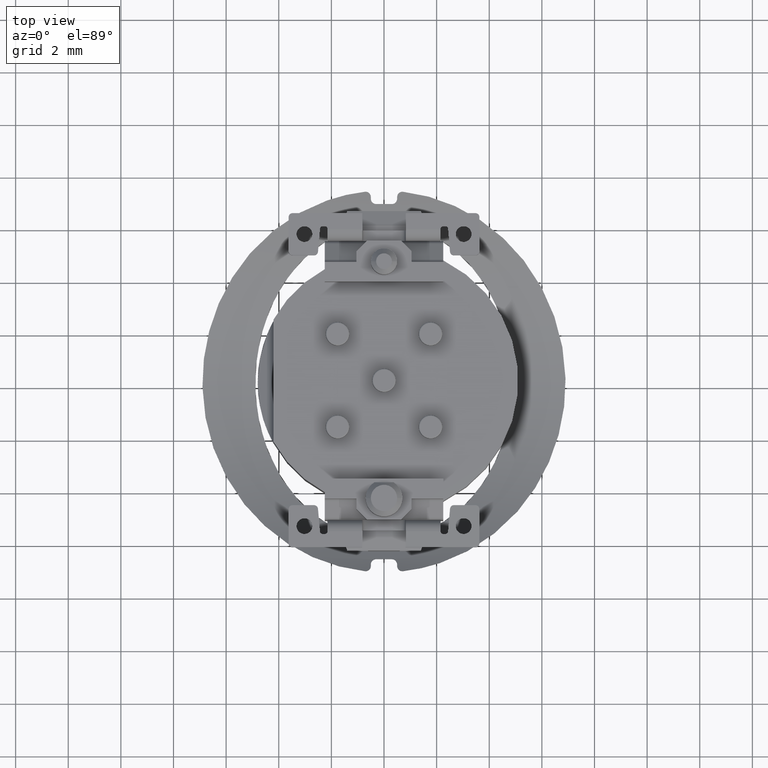
[diagram: clean part render]
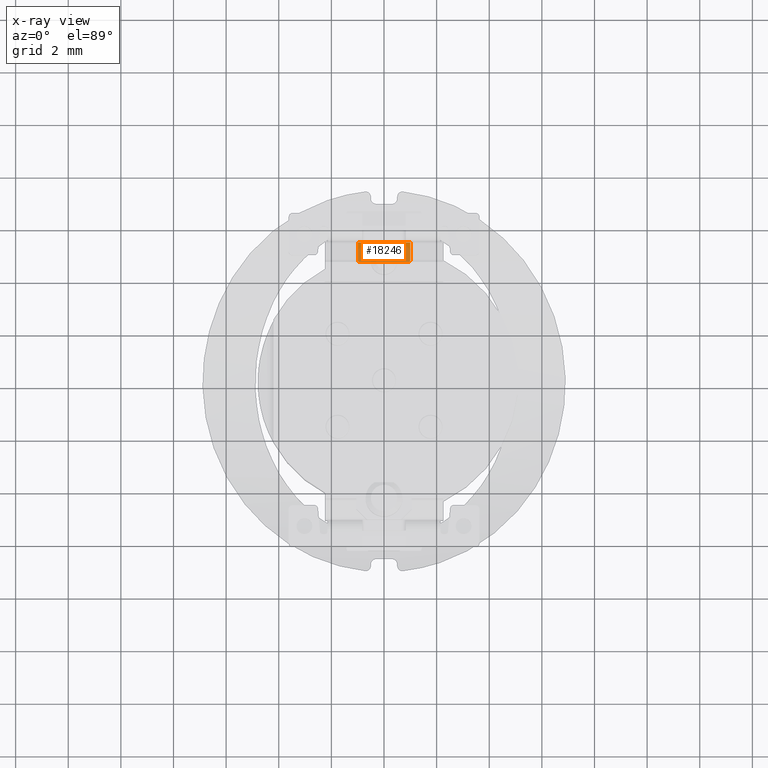
[diagram: x-ray — body ghosted, one internal face saturated and labeled with its STEP entity id]
A machine part, top view, then the same camera in x-ray: the body is ghosted and one INTERNAL B-rep face — a face not visible from any outside direction — is saturated and labeled: STEP entity #18246.
In plain terms, the highlighted planar face has unit normal (0, 0, 1).
Its self-contained STEP definition (entity closure, byte-faithful):
#1573=DIRECTION('',(0.E0,-1.E0,0.E0));
#1574=VECTOR('',#1573,6.5E-1);
#1575=CARTESIAN_POINT('',(-1.E0,5.3E0,-3.801460183660E0));
#1576=LINE('',#1575,#1574);
#2190=DIRECTION('',(0.E0,-1.E0,0.E0));
#2191=VECTOR('',#2190,6.5E-1);
#2192=CARTESIAN_POINT('',(1.E0,5.3E0,-3.801460183660E0));
#2193=LINE('',#2192,#2191);
#2216=DIRECTION('',(1.E0,0.E0,0.E0));
#2217=VECTOR('',#2216,1.946410161514E0);
#2218=CARTESIAN_POINT('',(-9.732050807569E-1,4.55E0,-3.801460183660E0));
#2219=LINE('',#2218,#2217);
#5775=CARTESIAN_POINT('',(-8.E-1,4.65E0,-3.801460183660E0));
#5776=DIRECTION('',(0.E0,0.E0,1.E0));
#5777=DIRECTION('',(-1.E0,1.776356839400E-14,0.E0));
#5778=AXIS2_PLACEMENT_3D('',#5775,#5776,#5777);
#5780=CARTESIAN_POINT('',(8.E-1,4.65E0,-3.801460183660E0));
#5781=DIRECTION('',(0.E0,0.E0,1.E0));
#5782=DIRECTION('',(8.660254037844E-1,-5.E-1,0.E0));
#5783=AXIS2_PLACEMENT_3D('',#5780,#5781,#5782);
#5803=DIRECTION('',(1.E0,0.E0,0.E0));
#5804=VECTOR('',#5803,2.E0);
#5805=CARTESIAN_POINT('',(-1.E0,5.3E0,-3.801460183660E0));
#5806=LINE('',#5805,#5804);
#10960=CARTESIAN_POINT('',(-1.E0,4.65E0,-3.801460183660E0));
#10962=VERTEX_POINT('',#10960);
#10963=CARTESIAN_POINT('',(1.E0,4.65E0,-3.801460183660E0));
#10965=VERTEX_POINT('',#10963);
#10995=CARTESIAN_POINT('',(-9.732050807569E-1,4.55E0,-3.801460183660E0));
#10996=CARTESIAN_POINT('',(9.732050807569E-1,4.55E0,-3.801460183660E0));
#10997=VERTEX_POINT('',#10995);
#10998=VERTEX_POINT('',#10996);
#11053=CARTESIAN_POINT('',(-1.E0,5.3E0,-3.801460183660E0));
#11054=CARTESIAN_POINT('',(1.E0,5.3E0,-3.801460183660E0));
#11055=VERTEX_POINT('',#11053);
#11056=VERTEX_POINT('',#11054);
#18230=CARTESIAN_POINT('',(-1.E0,5.601296209876E0,-3.801460183660E0));
#18231=DIRECTION('',(0.E0,0.E0,1.E0));
#18232=DIRECTION('',(0.E0,-1.E0,0.E0));
#18233=AXIS2_PLACEMENT_3D('',#18230,#18231,#18232);
#18234=PLANE('',#18233);
#18235=ORIENTED_EDGE('',*,*,#13197,.F.);
#18237=ORIENTED_EDGE('',*,*,#18236,.F.);
#18238=ORIENTED_EDGE('',*,*,#12691,.F.);
#18240=ORIENTED_EDGE('',*,*,#18239,.T.);
#18241=ORIENTED_EDGE('',*,*,#13135,.T.);
#18243=ORIENTED_EDGE('',*,*,#18242,.F.);
#18244=EDGE_LOOP('',(#18235,#18237,#18238,#18240,#18241,#18243));
#18245=FACE_OUTER_BOUND('',#18244,.F.);
#5779=CIRCLE('',#5778,2.E-1);
#5784=CIRCLE('',#5783,2.E-1);
#12691=EDGE_CURVE('',#11055,#10962,#1576,.T.);
#13135=EDGE_CURVE('',#11056,#10965,#2193,.T.);
#13197=EDGE_CURVE('',#10997,#10998,#2219,.T.);
#18236=EDGE_CURVE('',#10962,#10997,#5779,.T.);
#18239=EDGE_CURVE('',#11055,#11056,#5806,.T.);
#18242=EDGE_CURVE('',#10998,#10965,#5784,.T.);
#18246=ADVANCED_FACE('',(#18245),#18234,.T.);